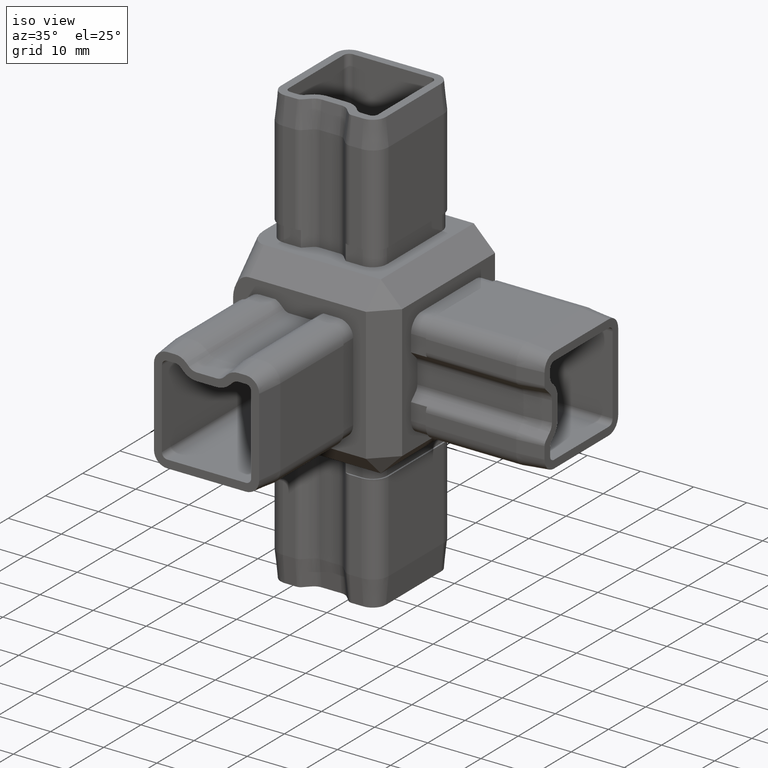
[diagram: clean part render]
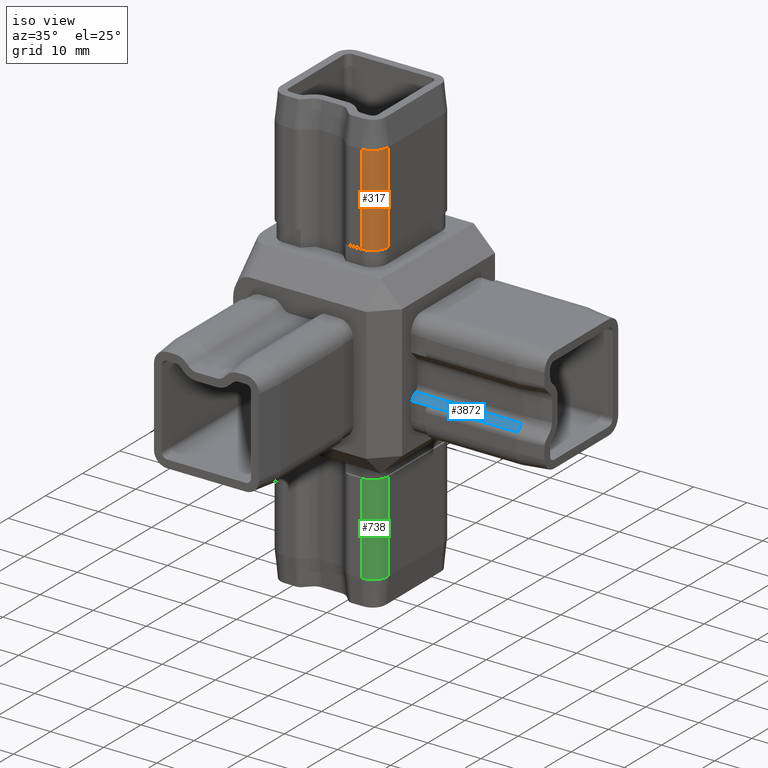
[diagram: same view with three faces highlighted in distinct colors, each labeled with its STEP entity id]
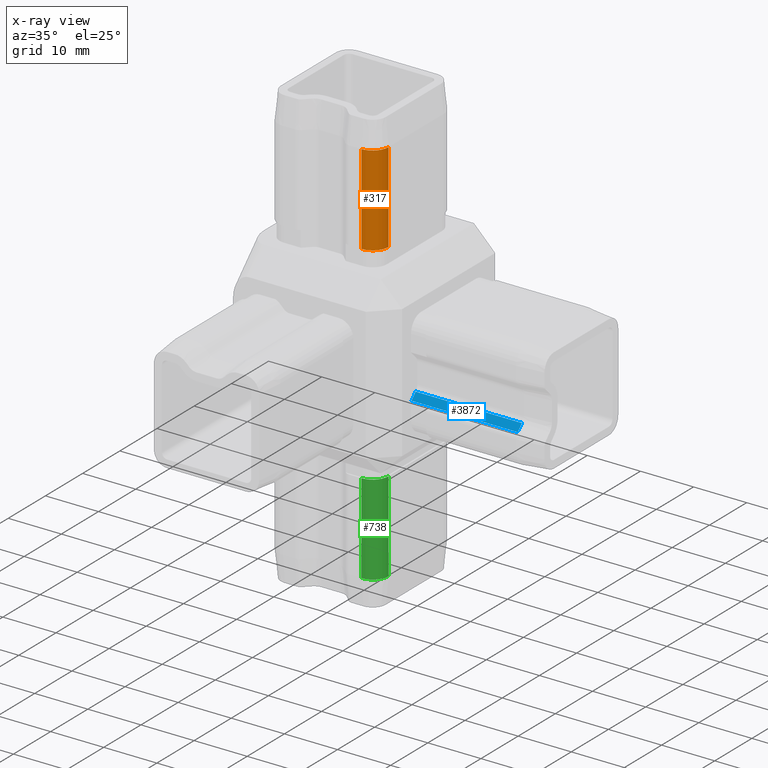
[diagram: x-ray of the same camera — body ghosted, the three highlighted faces saturated]
A machine part, iso view with three faces highlighted in distinct colors.
The next image is the same camera in x-ray (body ghosted, the three faces saturated) — at least one of them is partly hidden behind the body in this view.
Their STEP definitions:

[orange] entity #317 — the highlighted cylindrical surface (edge-blend (fillet) strip) has radius 3 mm, axis along (-0, -0, -1).
#317 = ADVANCED_FACE ( 'NONE', ( #15087 ), #15584, .T. ) ;
#454 = CARTESIAN_POINT ( 'NONE',  ( 8.400000000000005700, -5.399999999999998600, 41.50000000000000000 ) ) ;
#826 = DIRECTION ( 'NONE',  ( -0.0000000000000000000, -0.0000000000000000000, -1.000000000000000000 ) ) ;
#1135 = VERTEX_POINT ( 'NONE', #3476 ) ;
#1765 = CIRCLE ( 'NONE', #15493, 2.999999999999997300 ) ;
#1848 = CARTESIAN_POINT ( 'NONE',  ( 5.400000000000011000, -5.399999999999998600, 41.50000000000000000 ) ) ;
#2255 = DIRECTION ( 'NONE',  ( -0.0000000000000000000, -0.0000000000000000000, -1.000000000000000000 ) ) ;
#2366 = CARTESIAN_POINT ( 'NONE',  ( 5.400000000000011000, -5.399999999999998600, 36.50000000000001400 ) ) ;
#3084 = ORIENTED_EDGE ( 'NONE', *, *, #14888, .F. ) ;
#3353 = DIRECTION ( 'NONE',  ( -0.0000000000000000000, -0.0000000000000000000, -1.000000000000000000 ) ) ;
#3476 = CARTESIAN_POINT ( 'NONE',  ( 5.400000000000009200, -8.399999999999998600, 36.50000000000001400 ) ) ;
#3752 = EDGE_CURVE ( 'NONE', #6362, #1135, #3909, .T. ) ;
#3909 = CIRCLE ( 'NONE', #19832, 2.999999999999997300 ) ;
#3962 = EDGE_LOOP ( 'NONE', ( #3084, #9603, #13958, #8310 ) ) ;
#4484 = CARTESIAN_POINT ( 'NONE',  ( 8.400000000000007500, -5.399999999999998600, 19.50000000000000000 ) ) ;
#4883 = VERTEX_POINT ( 'NONE', #5160 ) ;
#5160 = CARTESIAN_POINT ( 'NONE',  ( 5.400000000000009200, -8.399999999999998600, 19.50000000000000000 ) ) ;
#5248 = LINE ( 'NONE', #17520, #5988 ) ;
#5988 = VECTOR ( 'NONE', #2255, 1000.000000000000000 ) ;
#6362 = VERTEX_POINT ( 'NONE', #19528 ) ;
#6664 = VECTOR ( 'NONE', #17576, 1000.000000000000000 ) ;
#7139 = EDGE_CURVE ( 'NONE', #7729, #4883, #1765, .T. ) ;
#7224 = DIRECTION ( 'NONE',  ( -1.000000000000000000, 0.0000000000000000000, 0.0000000000000000000 ) ) ;
#7729 = VERTEX_POINT ( 'NONE', #4484 ) ;
#8115 = CARTESIAN_POINT ( 'NONE',  ( 5.400000000000011000, -5.399999999999998600, 19.50000000000000000 ) ) ;
#8310 = ORIENTED_EDGE ( 'NONE', *, *, #7139, .F. ) ;
#9197 = AXIS2_PLACEMENT_3D ( 'NONE', #1848, #3353, #15624 ) ;
#9603 = ORIENTED_EDGE ( 'NONE', *, *, #3752, .T. ) ;
#10773 = LINE ( 'NONE', #454, #6664 ) ;
#12805 = EDGE_CURVE ( 'NONE', #1135, #4883, #5248, .T. ) ;
#13958 = ORIENTED_EDGE ( 'NONE', *, *, #12805, .T. ) ;
#14365 = DIRECTION ( 'NONE',  ( -1.000000000000000000, 0.0000000000000000000, 0.0000000000000000000 ) ) ;
#14888 = EDGE_CURVE ( 'NONE', #6362, #7729, #10773, .T. ) ;
#15087 = FACE_OUTER_BOUND ( 'NONE', #3962, .T. ) ;
#15493 = AXIS2_PLACEMENT_3D ( 'NONE', #8115, #19038, #14365 ) ;
#15584 = CYLINDRICAL_SURFACE ( 'NONE', #9197, 2.999999999999997300 ) ;
#15624 = DIRECTION ( 'NONE',  ( -1.000000000000000000, 0.0000000000000000000, 0.0000000000000000000 ) ) ;
#17520 = CARTESIAN_POINT ( 'NONE',  ( 5.400000000000011900, -8.399999999999996800, 41.50000000000000000 ) ) ;
#17576 = DIRECTION ( 'NONE',  ( -0.0000000000000000000, -0.0000000000000000000, -1.000000000000000000 ) ) ;
#19038 = DIRECTION ( 'NONE',  ( -0.0000000000000000000, -0.0000000000000000000, -1.000000000000000000 ) ) ;
#19528 = CARTESIAN_POINT ( 'NONE',  ( 8.400000000000005700, -5.399999999999998600, 36.50000000000002100 ) ) ;
#19832 = AXIS2_PLACEMENT_3D ( 'NONE', #2366, #826, #7224 ) ;

[blue] entity #3872 — the highlighted planar face has unit normal (0, -0.7071, 0.7071).
#657 = VERTEX_POINT ( 'NONE', #6538 ) ;
#816 = CARTESIAN_POINT ( 'NONE',  ( 39.50000000000000000, -6.839339828220174900, -2.939339828220196300 ) ) ;
#1797 = AXIS2_PLACEMENT_3D ( 'NONE', #2920, #13768, #4510 ) ;
#2228 = DIRECTION ( 'NONE',  ( 0.0000000000000000000, -0.7071067811865474600, -0.7071067811865474600 ) ) ;
#2920 = CARTESIAN_POINT ( 'NONE',  ( 39.50000000000000000, -6.839339828220174900, -2.939339828220196300 ) ) ;
#3872 = ADVANCED_FACE ( 'NONE', ( #12196 ), #13705, .T. ) ;
#3902 = VERTEX_POINT ( 'NONE', #5877 ) ;
#4181 = ORIENTED_EDGE ( 'NONE', *, *, #13814, .F. ) ;
#4280 = ORIENTED_EDGE ( 'NONE', *, *, #16335, .T. ) ;
#4510 = DIRECTION ( 'NONE',  ( 0.0000000000000000000, -0.7071067811865471300, -0.7071067811865479100 ) ) ;
#5029 = VECTOR ( 'NONE', #18929, 1000.000000000000000 ) ;
#5169 = LINE ( 'NONE', #816, #18962 ) ;
#5356 = DIRECTION ( 'NONE',  ( 7.241374701688105200E-017, 0.7071067811865471300, 0.7071067811865479100 ) ) ;
#5390 = CARTESIAN_POINT ( 'NONE',  ( 34.50000000000000700, -6.839339828220178500, -2.939339828220199000 ) ) ;
#5877 = CARTESIAN_POINT ( 'NONE',  ( 14.49999999999999800, -6.839339828220177600, -2.939339828220185200 ) ) ;
#6538 = CARTESIAN_POINT ( 'NONE',  ( 14.49999999999999800, -7.960660171779817800, -4.060660171779825400 ) ) ;
#6810 = EDGE_CURVE ( 'NONE', #19544, #10862, #15843, .T. ) ;
#8571 = CARTESIAN_POINT ( 'NONE',  ( 34.50000000000000700, -7.960660171779819500, -4.060660171779839600 ) ) ;
#8615 = LINE ( 'NONE', #14615, #19258 ) ;
#9144 = LINE ( 'NONE', #15873, #5029 ) ;
#9207 = ORIENTED_EDGE ( 'NONE', *, *, #6810, .F. ) ;
#10777 = VECTOR ( 'NONE', #2228, 1000.000000000000100 ) ;
#10862 = VERTEX_POINT ( 'NONE', #8571 ) ;
#12196 = FACE_OUTER_BOUND ( 'NONE', #13513, .T. ) ;
#12633 = ORIENTED_EDGE ( 'NONE', *, *, #13011, .F. ) ;
#13011 = EDGE_CURVE ( 'NONE', #10862, #657, #9144, .T. ) ;
#13513 = EDGE_LOOP ( 'NONE', ( #12633, #9207, #4280, #4181 ) ) ;
#13705 = PLANE ( 'NONE',  #1797 ) ;
#13768 = DIRECTION ( 'NONE',  ( 3.986139905882512600E-016, -0.7071067811865479100, 0.7071067811865471300 ) ) ;
#13814 = EDGE_CURVE ( 'NONE', #657, #3902, #8615, .T. ) ;
#14615 = CARTESIAN_POINT ( 'NONE',  ( 14.49999999999999800, -6.839339828220177600, -2.939339828220185200 ) ) ;
#15843 = LINE ( 'NONE', #5390, #10777 ) ;
#15873 = CARTESIAN_POINT ( 'NONE',  ( 39.50000000000000000, -7.960660171779814200, -4.060660171779837000 ) ) ;
#16335 = EDGE_CURVE ( 'NONE', #19544, #3902, #5169, .T. ) ;
#16881 = CARTESIAN_POINT ( 'NONE',  ( 34.50000000000001400, -6.839339828220175800, -2.939339828220194100 ) ) ;
#18929 = DIRECTION ( 'NONE',  ( -1.000000000000000000, -1.196361017915039700E-016, 4.440892098500625200E-016 ) ) ;
#18962 = VECTOR ( 'NONE', #19454, 1000.000000000000000 ) ;
#19258 = VECTOR ( 'NONE', #5356, 1000.000000000000000 ) ;
#19454 = DIRECTION ( 'NONE',  ( -1.000000000000000000, -1.196361017915039700E-016, 4.440892098500625200E-016 ) ) ;
#19544 = VERTEX_POINT ( 'NONE', #16881 ) ;

[green] entity #738 — the highlighted cylindrical surface (edge-blend (fillet) strip) has radius 3 mm, axis along (-0, -0, 1).
#125 = EDGE_CURVE ( 'NONE', #8343, #8230, #2973, .T. ) ;
#164 = VERTEX_POINT ( 'NONE', #7887 ) ;
#198 = ORIENTED_EDGE ( 'NONE', *, *, #20079, .T. ) ;
#500 = EDGE_LOOP ( 'NONE', ( #8705, #14161, #9644, #198 ) ) ;
#738 = ADVANCED_FACE ( 'NONE', ( #3661 ), #16031, .T. ) ;
#942 = CARTESIAN_POINT ( 'NONE',  ( 8.400000000000007500, -5.399999999999998600, -19.50000000000000000 ) ) ;
#1004 = DIRECTION ( 'NONE',  ( -1.000000000000000000, 0.0000000000000000000, 0.0000000000000000000 ) ) ;
#1751 = EDGE_CURVE ( 'NONE', #8343, #18808, #4499, .T. ) ;
#2492 = CARTESIAN_POINT ( 'NONE',  ( 5.400000000000011000, -5.399999999999998600, -19.50000000000000000 ) ) ;
#2674 = DIRECTION ( 'NONE',  ( 0.0000000000000000000, 0.0000000000000000000, -1.000000000000000000 ) ) ;
#2973 = LINE ( 'NONE', #4302, #18980 ) ;
#3612 = VECTOR ( 'NONE', #16809, 1000.000000000000000 ) ;
#3661 = FACE_OUTER_BOUND ( 'NONE', #500, .T. ) ;
#4054 = DIRECTION ( 'NONE',  ( 0.0000000000000000000, 0.0000000000000000000, -1.000000000000000000 ) ) ;
#4302 = CARTESIAN_POINT ( 'NONE',  ( 8.400000000000005700, -5.399999999999998600, -41.50000000000000000 ) ) ;
#4499 = CIRCLE ( 'NONE', #4941, 2.999999999999997300 ) ;
#4941 = AXIS2_PLACEMENT_3D ( 'NONE', #8883, #2674, #18121 ) ;
#5068 = AXIS2_PLACEMENT_3D ( 'NONE', #2492, #4054, #1004 ) ;
#5647 = EDGE_CURVE ( 'NONE', #18808, #164, #6345, .T. ) ;
#6039 = DIRECTION ( 'NONE',  ( -0.0000000000000000000, -0.0000000000000000000, 1.000000000000000000 ) ) ;
#6345 = LINE ( 'NONE', #19863, #3612 ) ;
#7887 = CARTESIAN_POINT ( 'NONE',  ( 5.400000000000009200, -8.399999999999998600, -19.50000000000000000 ) ) ;
#8230 = VERTEX_POINT ( 'NONE', #942 ) ;
#8343 = VERTEX_POINT ( 'NONE', #13742 ) ;
#8705 = ORIENTED_EDGE ( 'NONE', *, *, #5647, .F. ) ;
#8883 = CARTESIAN_POINT ( 'NONE',  ( 5.400000000000011000, -5.399999999999998600, -36.50000000000001400 ) ) ;
#9075 = DIRECTION ( 'NONE',  ( -0.0000000000000000000, -0.0000000000000000000, 1.000000000000000000 ) ) ;
#9461 = CARTESIAN_POINT ( 'NONE',  ( 5.400000000000009200, -8.399999999999998600, -36.50000000000001400 ) ) ;
#9566 = CARTESIAN_POINT ( 'NONE',  ( 5.400000000000011000, -5.399999999999998600, -41.50000000000000000 ) ) ;
#9644 = ORIENTED_EDGE ( 'NONE', *, *, #125, .T. ) ;
#10173 = CIRCLE ( 'NONE', #5068, 2.999999999999997300 ) ;
#13742 = CARTESIAN_POINT ( 'NONE',  ( 8.400000000000007500, -5.399999999999998600, -36.50000000000001400 ) ) ;
#14161 = ORIENTED_EDGE ( 'NONE', *, *, #1751, .F. ) ;
#16031 = CYLINDRICAL_SURFACE ( 'NONE', #16035, 2.999999999999997300 ) ;
#16035 = AXIS2_PLACEMENT_3D ( 'NONE', #9566, #9075, #17236 ) ;
#16809 = DIRECTION ( 'NONE',  ( -0.0000000000000000000, -0.0000000000000000000, 1.000000000000000000 ) ) ;
#17236 = DIRECTION ( 'NONE',  ( 1.000000000000000000, 0.0000000000000000000, 0.0000000000000000000 ) ) ;
#18121 = DIRECTION ( 'NONE',  ( -1.000000000000000000, 0.0000000000000000000, 0.0000000000000000000 ) ) ;
#18808 = VERTEX_POINT ( 'NONE', #9461 ) ;
#18980 = VECTOR ( 'NONE', #6039, 1000.000000000000000 ) ;
#19863 = CARTESIAN_POINT ( 'NONE',  ( 5.400000000000011900, -8.399999999999996800, -41.50000000000000000 ) ) ;
#20079 = EDGE_CURVE ( 'NONE', #8230, #164, #10173, .T. ) ;